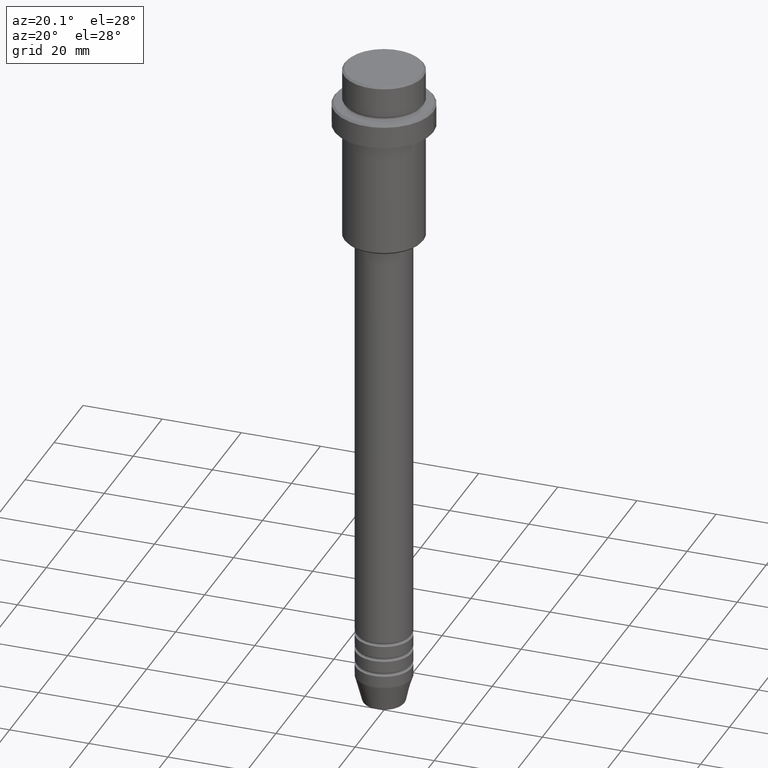
[diagram: clean part render]
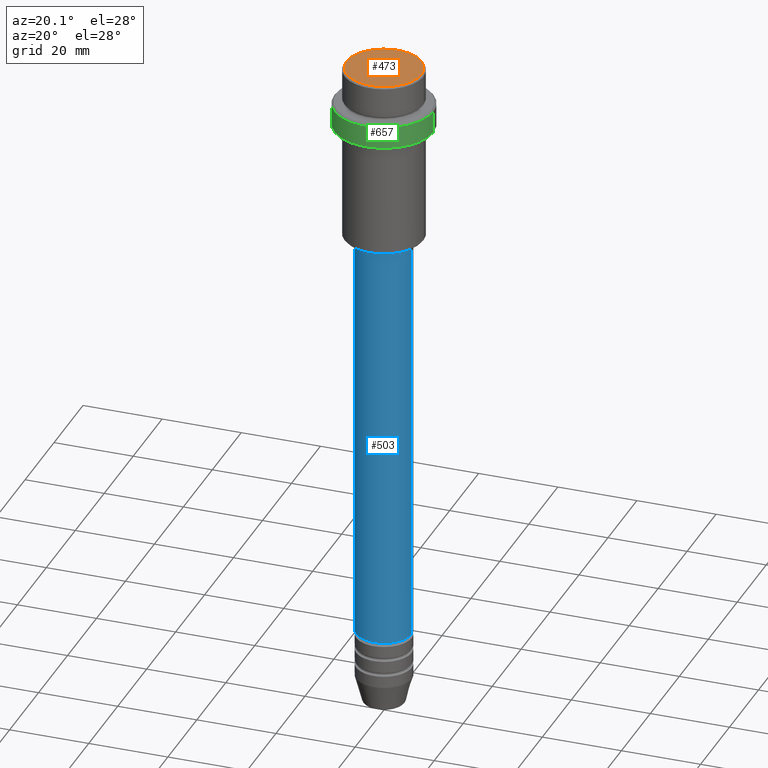
[diagram: same view with three faces highlighted in distinct colors, each labeled with its STEP entity id]
A machine part, auxiliary view with three faces highlighted in distinct colors.
Their STEP definitions:

[orange] entity #473 — the highlighted planar face has unit normal (0, -0, 1).
#1 = ORIENTED_EDGE ( 'NONE', *, *, #22, .T. ) ;
#8 = ORIENTED_EDGE ( 'NONE', *, *, #1256, .T. ) ;
#22 = EDGE_CURVE ( 'NONE', #1206, #831, #813, .T. ) ;
#95 = EDGE_LOOP ( 'NONE', ( #1, #8 ) ) ;
#138 = CARTESIAN_POINT ( 'NONE',  ( -9.500000000000035527, 0.000000000000000000, 0.000000000000000000 ) ) ;
#155 = CARTESIAN_POINT ( 'NONE',  ( 0.000000000000000000, 0.000000000000000000, 0.000000000000000000 ) ) ;
#215 = DIRECTION ( 'NONE',  ( -0.000000000000000000, -0.000000000000000000, 1.000000000000000000 ) ) ;
#225 = DIRECTION ( 'NONE',  ( 1.000000000000000000, 0.000000000000000000, 0.000000000000000000 ) ) ;
#276 = PLANE ( 'NONE',  #978 ) ;
#473 = ADVANCED_FACE ( 'NONE', ( #932 ), #276, .T. ) ;
#554 = CARTESIAN_POINT ( 'NONE',  ( 9.500000000000035527, 1.194030629168671442E-15, 0.000000000000000000 ) ) ;
#604 = DIRECTION ( 'NONE',  ( 1.000000000000000000, 0.000000000000000000, 0.000000000000000000 ) ) ;
#605 = AXIS2_PLACEMENT_3D ( 'NONE', #155, #802, #808 ) ;
#650 = CIRCLE ( 'NONE', #1357, 9.500000000000035527 ) ;
#802 = DIRECTION ( 'NONE',  ( -0.000000000000000000, -0.000000000000000000, 1.000000000000000000 ) ) ;
#808 = DIRECTION ( 'NONE',  ( 1.000000000000000000, 0.000000000000000000, 0.000000000000000000 ) ) ;
#813 = CIRCLE ( 'NONE', #605, 9.500000000000035527 ) ;
#831 = VERTEX_POINT ( 'NONE', #554 ) ;
#932 = FACE_OUTER_BOUND ( 'NONE', #95, .T. ) ;
#978 = AXIS2_PLACEMENT_3D ( 'NONE', #1145, #1134, #604 ) ;
#1134 = DIRECTION ( 'NONE',  ( 0.000000000000000000, -0.000000000000000000, 1.000000000000000000 ) ) ;
#1145 = CARTESIAN_POINT ( 'NONE',  ( 0.000000000000000000, 0.000000000000000000, 0.000000000000000000 ) ) ;
#1206 = VERTEX_POINT ( 'NONE', #138 ) ;
#1256 = EDGE_CURVE ( 'NONE', #831, #1206, #650, .T. ) ;
#1316 = CARTESIAN_POINT ( 'NONE',  ( 0.000000000000000000, 0.000000000000000000, 0.000000000000000000 ) ) ;
#1357 = AXIS2_PLACEMENT_3D ( 'NONE', #1316, #215, #225 ) ;

[blue] entity #503 — the highlighted cylindrical surface (edge-blend (fillet) strip) has radius 7 mm, axis along (-0, -0, 1).
#50 = LINE ( 'NONE', #703, #1261 ) ;
#78 = EDGE_CURVE ( 'NONE', #655, #615, #50, .T. ) ;
#116 = VERTEX_POINT ( 'NONE', #352 ) ;
#222 = AXIS2_PLACEMENT_3D ( 'NONE', #994, #320, #562 ) ;
#250 = VERTEX_POINT ( 'NONE', #386 ) ;
#314 = CARTESIAN_POINT ( 'NONE',  ( -7.000000000000000000, 8.572527594031473190E-16, -46.00000000000000000 ) ) ;
#320 = DIRECTION ( 'NONE',  ( -0.000000000000000000, -0.000000000000000000, 1.000000000000000000 ) ) ;
#352 = CARTESIAN_POINT ( 'NONE',  ( 7.000000000000000000, 0.000000000000000000, -150.9999999999999147 ) ) ;
#356 = DIRECTION ( 'NONE',  ( -0.000000000000000000, -0.000000000000000000, 1.000000000000000000 ) ) ;
#374 = CIRCLE ( 'NONE', #1218, 7.000000000000000000 ) ;
#386 = CARTESIAN_POINT ( 'NONE',  ( 7.000000000000000000, 0.000000000000000000, -46.00000000000000000 ) ) ;
#414 = EDGE_CURVE ( 'NONE', #116, #250, #969, .T. ) ;
#415 = CARTESIAN_POINT ( 'NONE',  ( 7.000000000000000000, 0.000000000000000000, 0.000000000000000000 ) ) ;
#486 = DIRECTION ( 'NONE',  ( -0.000000000000000000, -0.000000000000000000, 1.000000000000000000 ) ) ;
#494 = AXIS2_PLACEMENT_3D ( 'NONE', #577, #356, #1025 ) ;
#503 = ADVANCED_FACE ( 'NONE', ( #690 ), #1035, .T. ) ;
#536 = ORIENTED_EDGE ( 'NONE', *, *, #414, .T. ) ;
#540 = EDGE_LOOP ( 'NONE', ( #1413, #946, #536, #908 ) ) ;
#542 = EDGE_CURVE ( 'NONE', #615, #250, #374, .T. ) ;
#562 = DIRECTION ( 'NONE',  ( 1.000000000000000000, 0.000000000000000000, 0.000000000000000000 ) ) ;
#577 = CARTESIAN_POINT ( 'NONE',  ( 0.000000000000000000, 0.000000000000000000, 0.000000000000000000 ) ) ;
#609 = CIRCLE ( 'NONE', #222, 7.000000000000000000 ) ;
#615 = VERTEX_POINT ( 'NONE', #314 ) ;
#630 = VECTOR ( 'NONE', #636, 1000.000000000000000 ) ;
#636 = DIRECTION ( 'NONE',  ( -0.000000000000000000, -0.000000000000000000, 1.000000000000000000 ) ) ;
#655 = VERTEX_POINT ( 'NONE', #1285 ) ;
#690 = FACE_OUTER_BOUND ( 'NONE', #540, .T. ) ;
#703 = CARTESIAN_POINT ( 'NONE',  ( -7.000000000000000000, 8.572527594031473190E-16, 0.000000000000000000 ) ) ;
#708 = DIRECTION ( 'NONE',  ( -0.000000000000000000, -0.000000000000000000, 1.000000000000000000 ) ) ;
#840 = EDGE_CURVE ( 'NONE', #655, #116, #609, .T. ) ;
#908 = ORIENTED_EDGE ( 'NONE', *, *, #542, .F. ) ;
#918 = CARTESIAN_POINT ( 'NONE',  ( 0.000000000000000000, 0.000000000000000000, -46.00000000000000000 ) ) ;
#946 = ORIENTED_EDGE ( 'NONE', *, *, #840, .T. ) ;
#969 = LINE ( 'NONE', #415, #630 ) ;
#994 = CARTESIAN_POINT ( 'NONE',  ( 0.000000000000000000, 0.000000000000000000, -150.9999999999999147 ) ) ;
#1025 = DIRECTION ( 'NONE',  ( 1.000000000000000000, 0.000000000000000000, 0.000000000000000000 ) ) ;
#1035 = CYLINDRICAL_SURFACE ( 'NONE', #494, 7.000000000000000000 ) ;
#1139 = DIRECTION ( 'NONE',  ( 1.000000000000000000, 0.000000000000000000, 0.000000000000000000 ) ) ;
#1218 = AXIS2_PLACEMENT_3D ( 'NONE', #918, #708, #1139 ) ;
#1261 = VECTOR ( 'NONE', #486, 1000.000000000000000 ) ;
#1285 = CARTESIAN_POINT ( 'NONE',  ( -7.000000000000000000, 8.572527594031473190E-16, -150.9999999999999147 ) ) ;
#1413 = ORIENTED_EDGE ( 'NONE', *, *, #78, .F. ) ;

[green] entity #657 — the highlighted cylindrical surface (partial cylindrical patch) has radius 12.5 mm, axis along (-0, -0, 1).
#10 = AXIS2_PLACEMENT_3D ( 'NONE', #353, #897, #1352 ) ;
#93 = CARTESIAN_POINT ( 'NONE',  ( -12.50000000000000000, 1.530808498934191521E-15, -15.00000000000000000 ) ) ;
#96 = CARTESIAN_POINT ( 'NONE',  ( 12.50000000000000000, 0.000000000000000000, -9.499999999999976907 ) ) ;
#101 = DIRECTION ( 'NONE',  ( 1.000000000000000000, 0.000000000000000000, 0.000000000000000000 ) ) ;
#106 = VECTOR ( 'NONE', #1099, 1000.000000000000000 ) ;
#165 = LINE ( 'NONE', #595, #588 ) ;
#181 = CIRCLE ( 'NONE', #722, 12.50000000000000000 ) ;
#189 = CARTESIAN_POINT ( 'NONE',  ( 12.50000000000000000, 0.000000000000000000, -15.00000000000000000 ) ) ;
#221 = AXIS2_PLACEMENT_3D ( 'NONE', #1273, #296, #101 ) ;
#258 = ORIENTED_EDGE ( 'NONE', *, *, #785, .T. ) ;
#296 = DIRECTION ( 'NONE',  ( -0.000000000000000000, -0.000000000000000000, 1.000000000000000000 ) ) ;
#353 = CARTESIAN_POINT ( 'NONE',  ( 0.000000000000000000, 0.000000000000000000, -15.00000000000000000 ) ) ;
#413 = VERTEX_POINT ( 'NONE', #96 ) ;
#490 = DIRECTION ( 'NONE',  ( -0.000000000000000000, -0.000000000000000000, 1.000000000000000000 ) ) ;
#544 = ORIENTED_EDGE ( 'NONE', *, *, #1071, .T. ) ;
#566 = EDGE_CURVE ( 'NONE', #1021, #973, #165, .T. ) ;
#588 = VECTOR ( 'NONE', #490, 1000.000000000000000 ) ;
#595 = CARTESIAN_POINT ( 'NONE',  ( -12.50000000000000000, 1.530808498934191521E-15, 0.000000000000000000 ) ) ;
#633 = VERTEX_POINT ( 'NONE', #189 ) ;
#635 = CYLINDRICAL_SURFACE ( 'NONE', #221, 12.50000000000000000 ) ;
#657 = ADVANCED_FACE ( 'NONE', ( #1398 ), #635, .T. ) ;
#661 = LINE ( 'NONE', #983, #106 ) ;
#722 = AXIS2_PLACEMENT_3D ( 'NONE', #832, #1376, #1073 ) ;
#785 = EDGE_CURVE ( 'NONE', #633, #413, #661, .T. ) ;
#832 = CARTESIAN_POINT ( 'NONE',  ( 0.000000000000000000, 0.000000000000000000, -9.499999999999976907 ) ) ;
#845 = EDGE_LOOP ( 'NONE', ( #891, #941, #258, #544 ) ) ;
#859 = CIRCLE ( 'NONE', #10, 12.50000000000000000 ) ;
#891 = ORIENTED_EDGE ( 'NONE', *, *, #566, .F. ) ;
#897 = DIRECTION ( 'NONE',  ( -0.000000000000000000, -0.000000000000000000, 1.000000000000000000 ) ) ;
#941 = ORIENTED_EDGE ( 'NONE', *, *, #1344, .T. ) ;
#973 = VERTEX_POINT ( 'NONE', #1247 ) ;
#983 = CARTESIAN_POINT ( 'NONE',  ( 12.50000000000000000, 0.000000000000000000, 0.000000000000000000 ) ) ;
#1021 = VERTEX_POINT ( 'NONE', #93 ) ;
#1071 = EDGE_CURVE ( 'NONE', #413, #973, #181, .T. ) ;
#1073 = DIRECTION ( 'NONE',  ( 1.000000000000000000, 0.000000000000000000, 0.000000000000000000 ) ) ;
#1099 = DIRECTION ( 'NONE',  ( -0.000000000000000000, -0.000000000000000000, 1.000000000000000000 ) ) ;
#1247 = CARTESIAN_POINT ( 'NONE',  ( -12.50000000000000000, 1.530808498934191521E-15, -9.499999999999976907 ) ) ;
#1273 = CARTESIAN_POINT ( 'NONE',  ( 0.000000000000000000, 0.000000000000000000, 0.000000000000000000 ) ) ;
#1344 = EDGE_CURVE ( 'NONE', #1021, #633, #859, .T. ) ;
#1352 = DIRECTION ( 'NONE',  ( 1.000000000000000000, 0.000000000000000000, 0.000000000000000000 ) ) ;
#1376 = DIRECTION ( 'NONE',  ( 0.000000000000000000, 0.000000000000000000, -1.000000000000000000 ) ) ;
#1398 = FACE_OUTER_BOUND ( 'NONE', #845, .T. ) ;